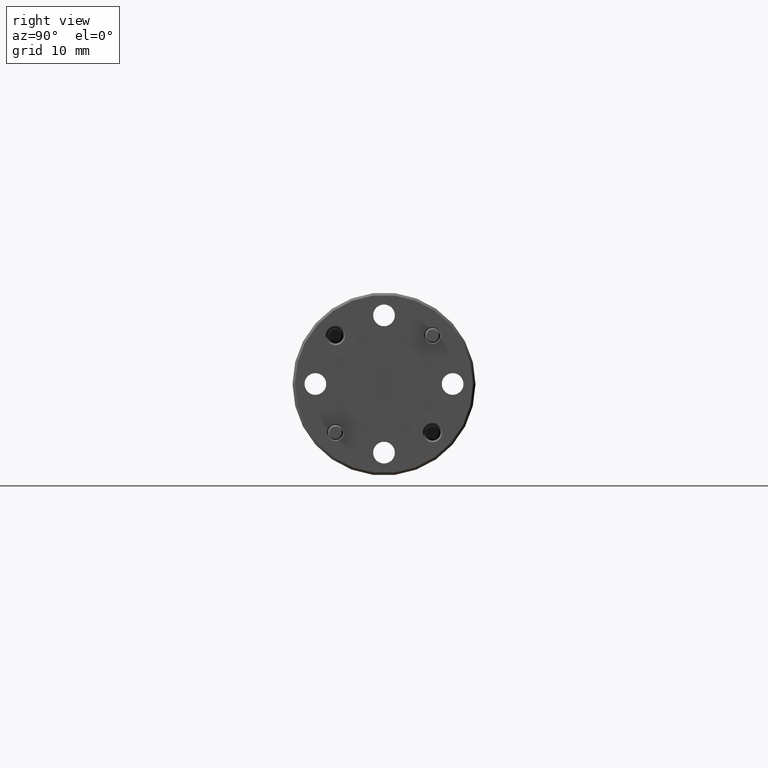
[diagram: clean part render]
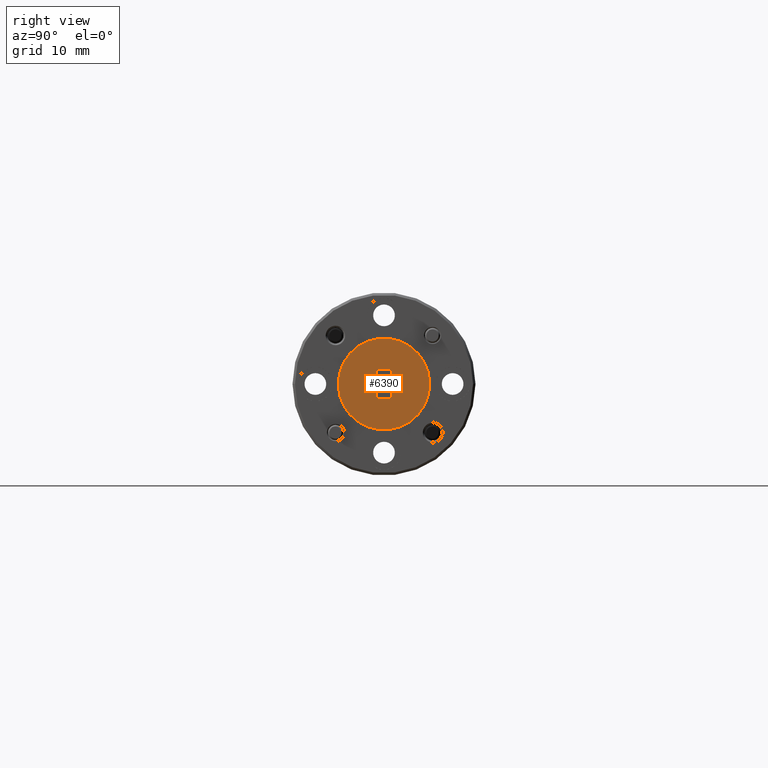
[diagram: same view with one face highlighted and labeled with its STEP entity id]
A machine part, right view. The second image highlights one B-rep face of the part: STEP entity #6390.
In plain terms, the highlighted planar face has unit normal (1, 0, -0).
Its self-contained STEP definition (entity closure, byte-faithful):
#11 = VERTEX_POINT ( 'NONE', #5528 ) ;
#64 = CARTESIAN_POINT ( 'NONE',  ( 1.841945884671743139, 2.090015889200941057, 2.884611598569149393 ) ) ;
#130 = EDGE_CURVE ( 'NONE', #833, #1270, #4720, .T. ) ;
#229 = FACE_BOUND ( 'NONE', #2916, .T. ) ;
#255 = ORIENTED_EDGE ( 'NONE', *, *, #7139, .F. ) ;
#303 = VERTEX_POINT ( 'NONE', #5666 ) ;
#578 = EDGE_LOOP ( 'NONE', ( #4651, #4896 ) ) ;
#585 = DIRECTION ( 'NONE',  ( 1.000000000000000000, 1.224646799147353454E-16, -0.000000000000000000 ) ) ;
#833 = VERTEX_POINT ( 'NONE', #5891 ) ;
#860 = FACE_OUTER_BOUND ( 'NONE', #578, .T. ) ;
#1079 = AXIS2_PLACEMENT_3D ( 'NONE', #64, #3361, #5143 ) ;
#1168 = DIRECTION ( 'NONE',  ( 0.000000000000000000, 1.000000000000000000, 0.000000000000000000 ) ) ;
#1246 = CARTESIAN_POINT ( 'NONE',  ( 1.841945884671743139, 2.120515889200941473, 2.823611598569149006 ) ) ;
#1270 = VERTEX_POINT ( 'NONE', #3833 ) ;
#1398 = CARTESIAN_POINT ( 'NONE',  ( 1.841945884671743139, 2.059515889200941530, 2.823611598569149006 ) ) ;
#2028 = VERTEX_POINT ( 'NONE', #5691 ) ;
#2137 = LINE ( 'NONE', #7318, #3240 ) ;
#2236 = DIRECTION ( 'NONE',  ( -1.224646799147353454E-16, 1.000000000000000000, 0.000000000000000000 ) ) ;
#2255 = DIRECTION ( 'NONE',  ( 0.000000000000000000, 1.000000000000000000, 0.000000000000000000 ) ) ;
#2262 = EDGE_CURVE ( 'NONE', #303, #833, #2137, .T. ) ;
#2269 = EDGE_CURVE ( 'NONE', #1270, #6499, #2736, .T. ) ;
#2483 = ORIENTED_EDGE ( 'NONE', *, *, #2269, .F. ) ;
#2536 = PLANE ( 'NONE',  #6518 ) ;
#2736 = LINE ( 'NONE', #6300, #4841 ) ;
#2737 = CIRCLE ( 'NONE', #3825, 0.1874999999999995837 ) ;
#2785 = EDGE_CURVE ( 'NONE', #11, #2028, #2737, .T. ) ;
#2916 = EDGE_LOOP ( 'NONE', ( #2483, #4963, #4828, #255 ) ) ;
#2925 = DIRECTION ( 'NONE',  ( 0.000000000000000000, -1.399512291836200633E-16, 1.000000000000000000 ) ) ;
#3016 = DIRECTION ( 'NONE',  ( -0.000000000000000000, 1.049634218877150290E-16, -1.000000000000000000 ) ) ;
#3240 = VECTOR ( 'NONE', #2255, 39.37007874015748143 ) ;
#3361 = DIRECTION ( 'NONE',  ( 1.000000000000000000, 1.224646799147353454E-16, -0.000000000000000000 ) ) ;
#3779 = EDGE_CURVE ( 'NONE', #2028, #11, #4748, .T. ) ;
#3825 = AXIS2_PLACEMENT_3D ( 'NONE', #5749, #585, #1168 ) ;
#3833 = CARTESIAN_POINT ( 'NONE',  ( 1.841945884671743139, 2.120515889200941473, 2.945611598569149336 ) ) ;
#3990 = DIRECTION ( 'NONE',  ( -0.000000000000000000, -1.000000000000000000, -0.000000000000000000 ) ) ;
#4651 = ORIENTED_EDGE ( 'NONE', *, *, #2785, .T. ) ;
#4720 = LINE ( 'NONE', #1246, #7195 ) ;
#4748 = CIRCLE ( 'NONE', #1079, 0.1874999999999995837 ) ;
#4828 = ORIENTED_EDGE ( 'NONE', *, *, #2262, .F. ) ;
#4841 = VECTOR ( 'NONE', #3990, 39.37007874015748143 ) ;
#4896 = ORIENTED_EDGE ( 'NONE', *, *, #3779, .T. ) ;
#4963 = ORIENTED_EDGE ( 'NONE', *, *, #130, .F. ) ;
#5143 = DIRECTION ( 'NONE',  ( 0.000000000000000000, 1.000000000000000000, 0.000000000000000000 ) ) ;
#5528 = CARTESIAN_POINT ( 'NONE',  ( 1.841945884671743139, 2.277515889200940613, 2.884611598569149393 ) ) ;
#5596 = CARTESIAN_POINT ( 'NONE',  ( 1.841945884671743139, 2.277515889200940613, 2.884611598569149393 ) ) ;
#5666 = CARTESIAN_POINT ( 'NONE',  ( 1.841945884671743139, 2.059515889200941530, 2.823611598569149006 ) ) ;
#5691 = CARTESIAN_POINT ( 'NONE',  ( 1.841945884671743139, 1.902515889200941723, 2.884611598569149393 ) ) ;
#5749 = CARTESIAN_POINT ( 'NONE',  ( 1.841945884671743139, 2.090015889200941057, 2.884611598569149393 ) ) ;
#5891 = CARTESIAN_POINT ( 'NONE',  ( 1.841945884671743139, 2.120515889200941473, 2.823611598569149006 ) ) ;
#6157 = CARTESIAN_POINT ( 'NONE',  ( 1.841945884671743139, 2.059515889200941530, 2.945611598569149336 ) ) ;
#6300 = CARTESIAN_POINT ( 'NONE',  ( 1.841945884671743139, 2.059515889200941530, 2.945611598569149336 ) ) ;
#6301 = VECTOR ( 'NONE', #3016, 39.37007874015748143 ) ;
#6390 = ADVANCED_FACE ( 'NONE', ( #229, #860 ), #2536, .T. ) ;
#6499 = VERTEX_POINT ( 'NONE', #6157 ) ;
#6518 = AXIS2_PLACEMENT_3D ( 'NONE', #5596, #6767, #2236 ) ;
#6580 = LINE ( 'NONE', #1398, #6301 ) ;
#6767 = DIRECTION ( 'NONE',  ( 1.000000000000000000, 1.224646799147353454E-16, -0.000000000000000000 ) ) ;
#7139 = EDGE_CURVE ( 'NONE', #6499, #303, #6580, .T. ) ;
#7195 = VECTOR ( 'NONE', #2925, 39.37007874015748143 ) ;
#7318 = CARTESIAN_POINT ( 'NONE',  ( 1.841945884671743139, 2.059515889200941530, 2.823611598569149006 ) ) ;